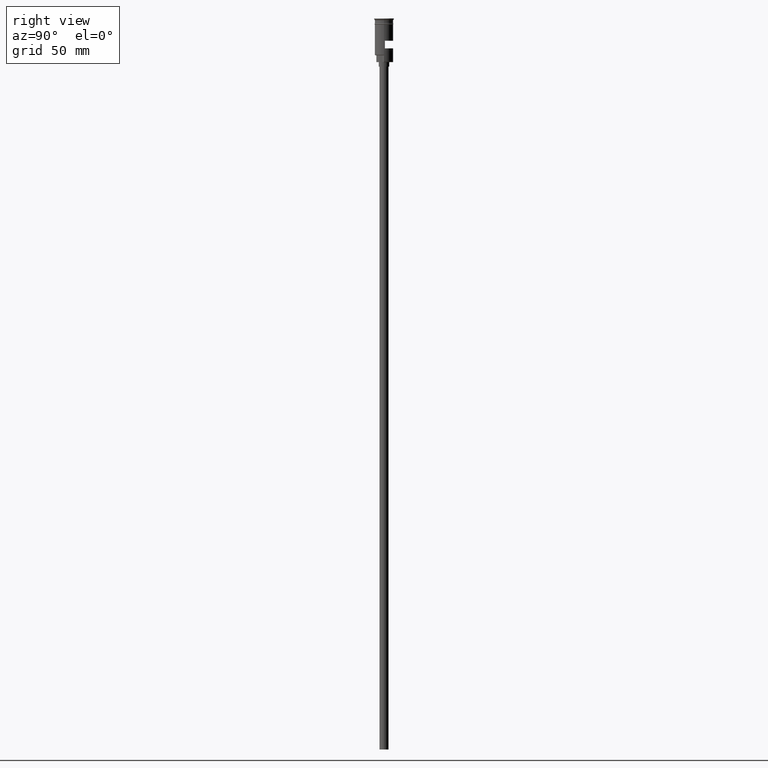
[diagram: clean part render]
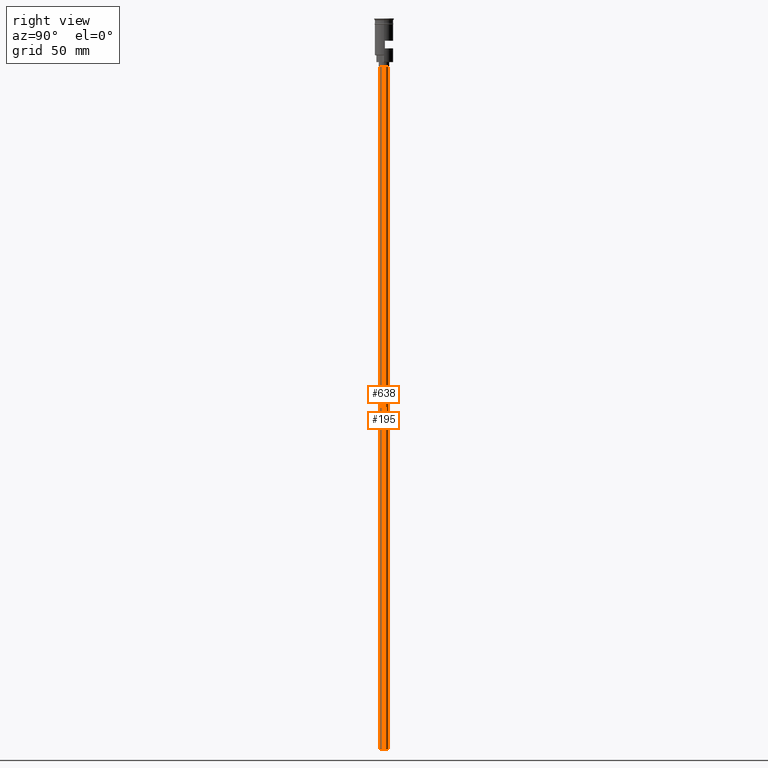
[diagram: same view with one multi-face feature highlighted, each face labeled with its STEP entity id]
A machine part, right view. The highlighted faces form ONE feature: a constant-radius fillet chain: 2 tangent blend faces with common blend radius 3 mm. The faces share edges in the B-rep.
Their STEP definitions:
[1] entity #638 (Cylinder):
#4 = VECTOR ( 'NONE', #83, 1000.000000000000000 ) ;
#83 = DIRECTION ( 'NONE',  ( -0.000000000000000000, -0.000000000000000000, 1.000000000000000000 ) ) ;
#132 = CIRCLE ( 'NONE', #932, 3.000000000000000444 ) ;
#156 = AXIS2_PLACEMENT_3D ( 'NONE', #668, #911, #289 ) ;
#164 = FACE_OUTER_BOUND ( 'NONE', #342, .T. ) ;
#267 = ORIENTED_EDGE ( 'NONE', *, *, #705, .T. ) ;
#289 = DIRECTION ( 'NONE',  ( 1.000000000000000000, 0.000000000000000000, 0.000000000000000000 ) ) ;
#299 = EDGE_CURVE ( 'NONE', #1371, #651, #132, .T. ) ;
#316 = DIRECTION ( 'NONE',  ( -1.000000000000000000, 0.000000000000000000, 0.000000000000000000 ) ) ;
#342 = EDGE_LOOP ( 'NONE', ( #382, #525, #267, #970 ) ) ;
#382 = ORIENTED_EDGE ( 'NONE', *, *, #900, .F. ) ;
#466 = EDGE_CURVE ( 'NONE', #507, #1440, #1432, .T. ) ;
#507 = VERTEX_POINT ( 'NONE', #1099 ) ;
#525 = ORIENTED_EDGE ( 'NONE', *, *, #299, .F. ) ;
#544 = VECTOR ( 'NONE', #1127, 1000.000000000000000 ) ;
#625 = CARTESIAN_POINT ( 'NONE',  ( -3.000000000000000444, 3.673940397442060361E-16, -478.5000000000000568 ) ) ;
#638 = ADVANCED_FACE ( 'NONE', ( #164 ), #1173, .T. ) ;
#651 = VERTEX_POINT ( 'NONE', #824 ) ;
#668 = CARTESIAN_POINT ( 'NONE',  ( 0.000000000000000000, 0.000000000000000000, -478.5000000000000568 ) ) ;
#688 = CARTESIAN_POINT ( 'NONE',  ( 3.000000000000000444, 0.000000000000000000, -478.5000000000000568 ) ) ;
#705 = EDGE_CURVE ( 'NONE', #1371, #507, #817, .T. ) ;
#817 = LINE ( 'NONE', #688, #4 ) ;
#824 = CARTESIAN_POINT ( 'NONE',  ( -3.000000000000000444, 3.673940397442060361E-16, -478.5000000000000568 ) ) ;
#837 = DIRECTION ( 'NONE',  ( 0.000000000000000000, 0.000000000000000000, -1.000000000000000000 ) ) ;
#899 = DIRECTION ( 'NONE',  ( -1.000000000000000000, 0.000000000000000000, 0.000000000000000000 ) ) ;
#900 = EDGE_CURVE ( 'NONE', #651, #1440, #1408, .T. ) ;
#911 = DIRECTION ( 'NONE',  ( -0.000000000000000000, -0.000000000000000000, 1.000000000000000000 ) ) ;
#932 = AXIS2_PLACEMENT_3D ( 'NONE', #1158, #1020, #899 ) ;
#941 = CARTESIAN_POINT ( 'NONE',  ( 0.000000000000000000, 0.000000000000000000, -31.50000000000000000 ) ) ;
#970 = ORIENTED_EDGE ( 'NONE', *, *, #466, .T. ) ;
#1020 = DIRECTION ( 'NONE',  ( 0.000000000000000000, 0.000000000000000000, -1.000000000000000000 ) ) ;
#1099 = CARTESIAN_POINT ( 'NONE',  ( 3.000000000000000444, 0.000000000000000000, -31.50000000000000000 ) ) ;
#1127 = DIRECTION ( 'NONE',  ( -0.000000000000000000, -0.000000000000000000, 1.000000000000000000 ) ) ;
#1158 = CARTESIAN_POINT ( 'NONE',  ( 0.000000000000000000, 0.000000000000000000, -478.5000000000000568 ) ) ;
#1173 = CYLINDRICAL_SURFACE ( 'NONE', #156, 3.000000000000000444 ) ;
#1222 = CARTESIAN_POINT ( 'NONE',  ( -3.000000000000000444, 3.673940397442060361E-16, -31.50000000000000000 ) ) ;
#1256 = AXIS2_PLACEMENT_3D ( 'NONE', #941, #837, #316 ) ;
#1371 = VERTEX_POINT ( 'NONE', #1481 ) ;
#1408 = LINE ( 'NONE', #625, #544 ) ;
#1432 = CIRCLE ( 'NONE', #1256, 3.000000000000000444 ) ;
#1440 = VERTEX_POINT ( 'NONE', #1222 ) ;
#1481 = CARTESIAN_POINT ( 'NONE',  ( 3.000000000000000444, 0.000000000000000000, -478.5000000000000568 ) ) ;
[2] entity #195 (Cylinder):
#4 = VECTOR ( 'NONE', #83, 1000.000000000000000 ) ;
#28 = CIRCLE ( 'NONE', #1479, 3.000000000000000444 ) ;
#83 = DIRECTION ( 'NONE',  ( -0.000000000000000000, -0.000000000000000000, 1.000000000000000000 ) ) ;
#150 = ORIENTED_EDGE ( 'NONE', *, *, #900, .T. ) ;
#195 = ADVANCED_FACE ( 'NONE', ( #623 ), #1488, .T. ) ;
#323 = CARTESIAN_POINT ( 'NONE',  ( 0.000000000000000000, 0.000000000000000000, -478.5000000000000568 ) ) ;
#345 = EDGE_CURVE ( 'NONE', #1440, #507, #28, .T. ) ;
#479 = EDGE_CURVE ( 'NONE', #651, #1371, #690, .T. ) ;
#507 = VERTEX_POINT ( 'NONE', #1099 ) ;
#544 = VECTOR ( 'NONE', #1127, 1000.000000000000000 ) ;
#623 = FACE_OUTER_BOUND ( 'NONE', #1537, .T. ) ;
#625 = CARTESIAN_POINT ( 'NONE',  ( -3.000000000000000444, 3.673940397442060361E-16, -478.5000000000000568 ) ) ;
#651 = VERTEX_POINT ( 'NONE', #824 ) ;
#688 = CARTESIAN_POINT ( 'NONE',  ( 3.000000000000000444, 0.000000000000000000, -478.5000000000000568 ) ) ;
#690 = CIRCLE ( 'NONE', #909, 3.000000000000000444 ) ;
#705 = EDGE_CURVE ( 'NONE', #1371, #507, #817, .T. ) ;
#788 = DIRECTION ( 'NONE',  ( 0.000000000000000000, 0.000000000000000000, -1.000000000000000000 ) ) ;
#817 = LINE ( 'NONE', #688, #4 ) ;
#824 = CARTESIAN_POINT ( 'NONE',  ( -3.000000000000000444, 3.673940397442060361E-16, -478.5000000000000568 ) ) ;
#827 = DIRECTION ( 'NONE',  ( 0.000000000000000000, 0.000000000000000000, -1.000000000000000000 ) ) ;
#900 = EDGE_CURVE ( 'NONE', #651, #1440, #1408, .T. ) ;
#905 = CARTESIAN_POINT ( 'NONE',  ( 0.000000000000000000, 0.000000000000000000, -31.50000000000000000 ) ) ;
#909 = AXIS2_PLACEMENT_3D ( 'NONE', #323, #827, #1321 ) ;
#1008 = ORIENTED_EDGE ( 'NONE', *, *, #345, .T. ) ;
#1010 = DIRECTION ( 'NONE',  ( 1.000000000000000000, 0.000000000000000000, 0.000000000000000000 ) ) ;
#1099 = CARTESIAN_POINT ( 'NONE',  ( 3.000000000000000444, 0.000000000000000000, -31.50000000000000000 ) ) ;
#1124 = DIRECTION ( 'NONE',  ( -0.000000000000000000, -0.000000000000000000, 1.000000000000000000 ) ) ;
#1127 = DIRECTION ( 'NONE',  ( -0.000000000000000000, -0.000000000000000000, 1.000000000000000000 ) ) ;
#1222 = CARTESIAN_POINT ( 'NONE',  ( -3.000000000000000444, 3.673940397442060361E-16, -31.50000000000000000 ) ) ;
#1321 = DIRECTION ( 'NONE',  ( -1.000000000000000000, 0.000000000000000000, 0.000000000000000000 ) ) ;
#1353 = CARTESIAN_POINT ( 'NONE',  ( 0.000000000000000000, 0.000000000000000000, -478.5000000000000568 ) ) ;
#1371 = VERTEX_POINT ( 'NONE', #1481 ) ;
#1380 = AXIS2_PLACEMENT_3D ( 'NONE', #1353, #1124, #1010 ) ;
#1403 = DIRECTION ( 'NONE',  ( -1.000000000000000000, 0.000000000000000000, 0.000000000000000000 ) ) ;
#1408 = LINE ( 'NONE', #625, #544 ) ;
#1440 = VERTEX_POINT ( 'NONE', #1222 ) ;
#1468 = ORIENTED_EDGE ( 'NONE', *, *, #479, .F. ) ;
#1479 = AXIS2_PLACEMENT_3D ( 'NONE', #905, #788, #1403 ) ;
#1481 = CARTESIAN_POINT ( 'NONE',  ( 3.000000000000000444, 0.000000000000000000, -478.5000000000000568 ) ) ;
#1488 = CYLINDRICAL_SURFACE ( 'NONE', #1380, 3.000000000000000444 ) ;
#1524 = ORIENTED_EDGE ( 'NONE', *, *, #705, .F. ) ;
#1537 = EDGE_LOOP ( 'NONE', ( #1468, #150, #1008, #1524 ) ) ;